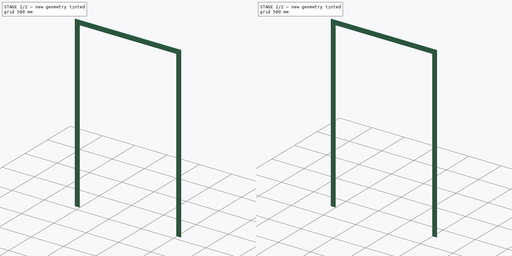
[diagram: build sequence overview — one tinted view per stage of 2, left to right]
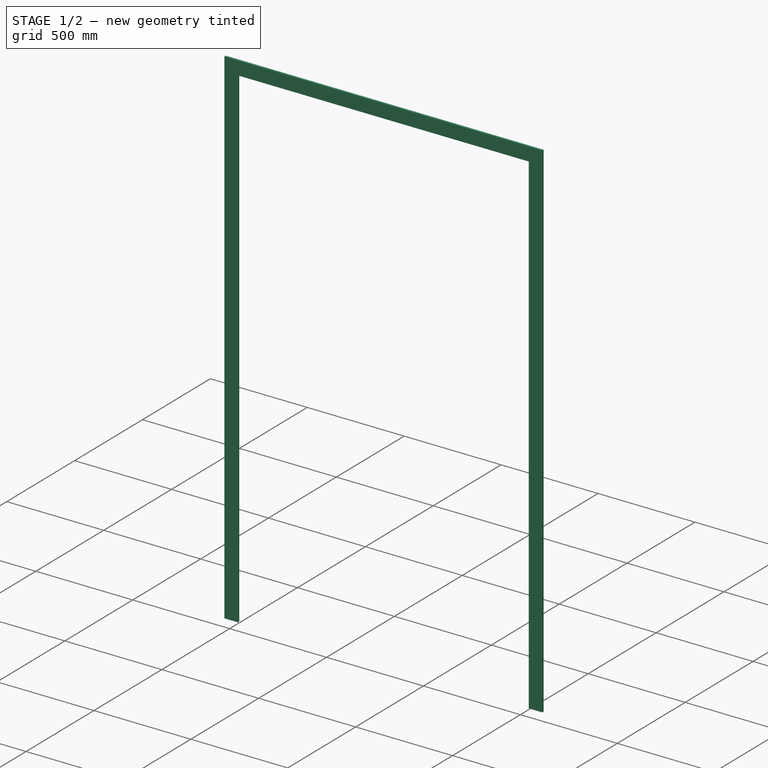
[diagram: stage 1 of 2 — iso view after this stage's code; geometry added in this stage tinted green]
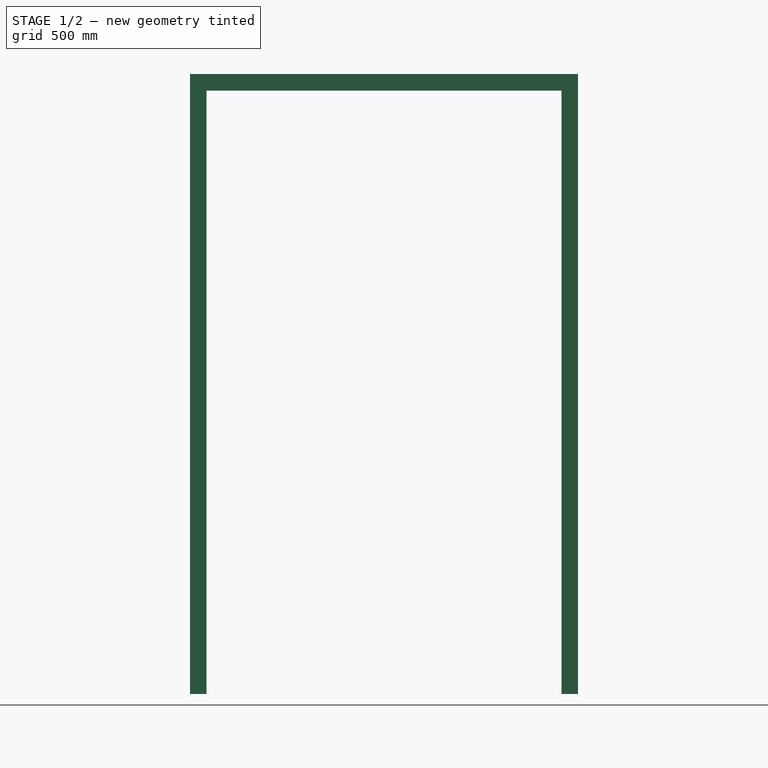
[diagram: stage 1 of 2 — front view after this stage's code; geometry added in this stage tinted green]
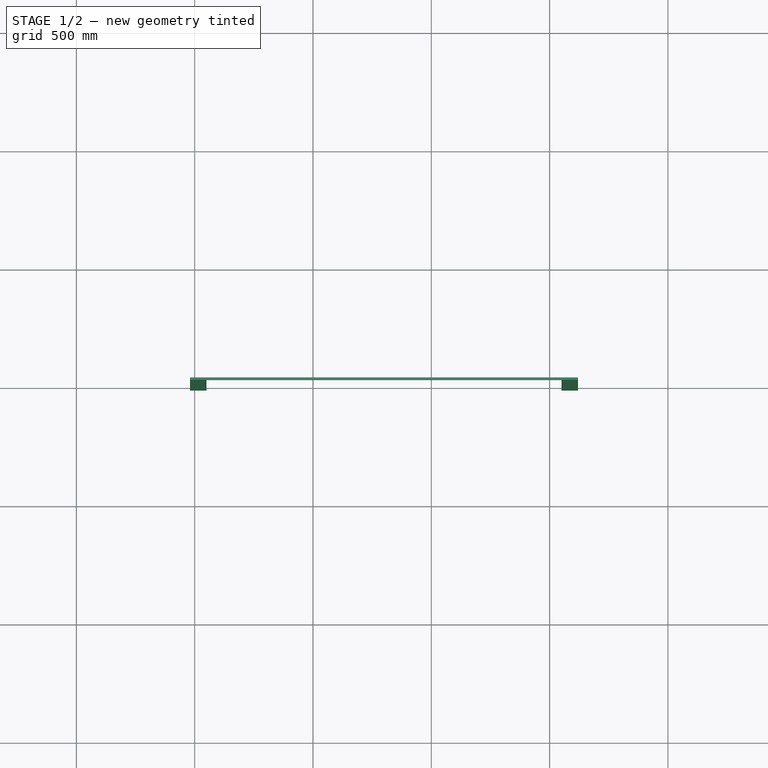
[diagram: stage 1 of 2 — top view after this stage's code; geometry added in this stage tinted green]
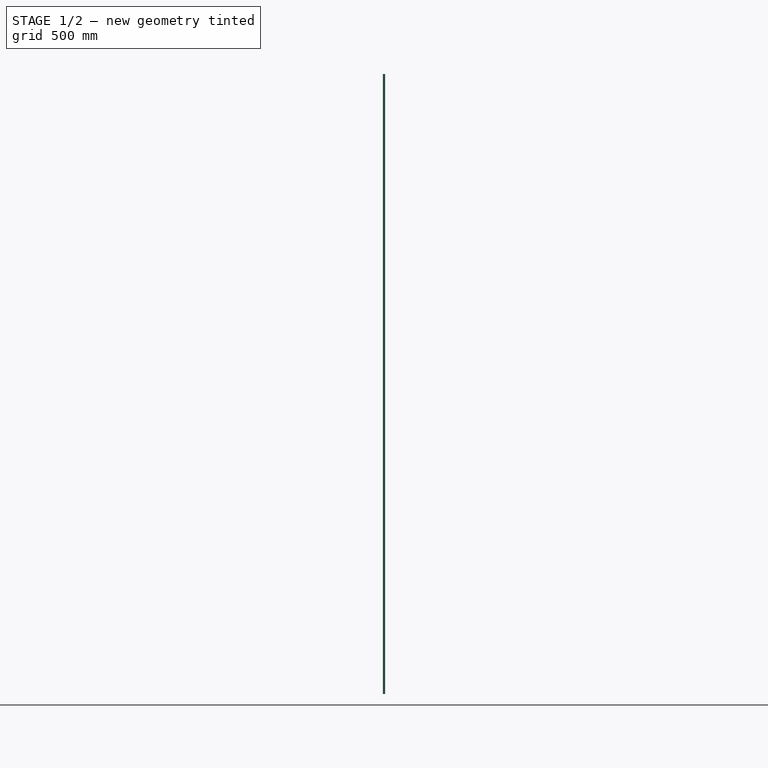
[diagram: stage 1 of 2 — right view after this stage's code; geometry added in this stage tinted green]
FCSTD DOCUMENT  (FreeCAD 0.16R6704 (Git))
Label: Double doors with transom and trims
License: CreativeCommons Attribution
LicenseURL: http://creativecommons.org/licenses/by/4.0/
objects: Sketcher::SketchObject×2, Part::FeaturePython×1, Part::Extrusion×1, PartDesign::Fillet×1, Part::Mirroring×1, App::DocumentObjectGroup×1
note: 6 computed .brp shape members not serialized (recipe doc carries the construction recipe); baked Part::Feature solids carry a one-line shape summary decoded from their .brp

FEATURE [Sketcher::SketchObject] Sketch143
  Placement = pos=(0,0,0) rot=(1,0,0;1.5708rad)
  sketch-geometry (21):
    g0: LineSegment StartX=0 StartY=0 StartZ=0 EndX=1600 EndY=0 EndZ=0
    g1: LineSegment StartX=1600 StartY=0 StartZ=0 EndX=1600 EndY=2600 EndZ=0
    g2: LineSegment StartX=1600 StartY=2600 StartZ=0 EndX=0 EndY=2600 EndZ=0
    g3: LineSegment StartX=0 StartY=2600 StartZ=0 EndX=0 EndY=0 EndZ=0
    g4: LineSegment StartX=50 StartY=2550 StartZ=0 EndX=1550 EndY=2550 EndZ=0
    g5: LineSegment StartX=1550 StartY=2550 StartZ=0 EndX=1550 EndY=0 EndZ=0
    g6: LineSegment StartX=1550 StartY=0 StartZ=0 EndX=50 EndY=0 EndZ=0
    g7: LineSegment StartX=50 StartY=0 StartZ=0 EndX=50 EndY=2550 EndZ=0
    g8: LineSegment StartX=55 StartY=2100 StartZ=0 EndX=797.5 EndY=2100 EndZ=0
    g9: LineSegment StartX=797.5 StartY=2100 StartZ=0 EndX=797.5 EndY=5 EndZ=0
    g10: LineSegment StartX=797.5 StartY=5 StartZ=0 EndX=55 EndY=5 EndZ=0
    g11: LineSegment StartX=55 StartY=5 StartZ=0 EndX=55 EndY=2100 EndZ=0
    g12: LineSegment StartX=802.5 StartY=2100 StartZ=0 EndX=1549 EndY=2100 EndZ=0
    g13: LineSegment StartX=1549 StartY=2100 StartZ=0 EndX=1549 EndY=5 EndZ=0
    g14: LineSegment StartX=1549 StartY=5 StartZ=0 EndX=802.5 EndY=5 EndZ=0
    g15: LineSegment StartX=802.5 StartY=5 StartZ=0 EndX=802.5 EndY=2100 EndZ=0
    g16: LineSegment [constr] StartX=800 StartY=2267.71 StartZ=0 EndX=800 EndY=-195.781 EndZ=0
    g17: LineSegment StartX=51 StartY=2549 StartZ=0 EndX=1549 EndY=2549 EndZ=0
    g18: LineSegment StartX=1549 StartY=2549 StartZ=0 EndX=1549 EndY=2101 EndZ=0
    g19: LineSegment StartX=1549 StartY=2101 StartZ=0 EndX=51 EndY=2101 EndZ=0
    g20: LineSegment StartX=51 StartY=2101 StartZ=0 EndX=51 EndY=2549 EndZ=0
  constraints (60):
    c: Coincident(g0,g1)
    c: Coincident(g1,g2)
    c: Coincident(g2,g3)
    c: Coincident(g3,g0)
    c: Horizontal(g0)
    c: Horizontal(g2)
    c: Vertical(g1)
    c: Vertical(g3)
    c: DistanceX(g2,g1) = 1600  'Largura das portas'
    c: Coincident(g4,g5)
    c: Coincident(g5,g6)
    c: Coincident(g6,g7)
    c: Coincident(g7,g4)
    c: Horizontal(g4)
    c: Horizontal(g6)
    c: Vertical(g5)
    c: Vertical(g7)
    c: PointOnObject(g5,g0)
    c: DistanceX(g2,g4) = 50  'Largura do batente 1'
    c: DistanceY(g4,g2) = 50  'Altura batente'
    c: DistanceX(g4,g1) = 50  'Largura do batente 2'
    c: Coincident(g8,g9)
    c: Coincident(g9,g10)
    c: Coincident(g10,g11)
    c: Coincident(g11,g8)
    c: Horizontal(g8)
    c: Horizontal(g10)
    c: Vertical(g9)
    c: Vertical(g11)
    c: Coincident(g13,g14)
    c: Coincident(g14,g15)
    c: Coincident(g15,g12)
    c: Horizontal(g12)
    c: Horizontal(g14)
    c: Vertical(g13)
    c: Vertical(g15)
    c: DistanceX(g4,g8) = 5
    c: Vertical(g16)
    c: DistanceX(g12,g8) = -5
    c: Symmetric(g8,g12,g16)
    c: DistanceY(g10,g6) = -5
    c: DistanceY(g13,g5) = -5
    c: Coincident(g0,g-1)
    c: DistanceY(g-1,g8) = 2100  'Altura das portas'
    c: Coincident(g17,g18)  'Constraint47'
    c: Coincident(g19,g20)  'Constraint46'
    c: Coincident(g20,g17)
    c: Horizontal(g17)
    c: Horizontal(g19)
    c: Vertical(g18)
    c: Vertical(g20)
    c: DistanceX(g4,g17) = 1
    c: DistanceY(g17,g4) = 1
    c: DistanceX(g17,g4) = 1
    c: Symmetric(g-1,g0,g16)
    c: DistanceX(g12,g18) = 0
    c: Coincident(g12,g13)
    c: DistanceY(g12,g18) = 1
    c: Coincident(g19,g18)
    c: DistanceY(g-1,g2) = 2600  'Altura do vão'
FEATURE [Part::FeaturePython] Window099  label="Double doors with transom"  # WARN: FeaturePython — macro-defined, semantics opaque (R4)
  Base = -> Sketch143
  Height = 0
  HoleDepth = 0
  MoveWithHost = true
  Normal = (0,1,0)
  Preset = 0
  Role = 0
  Width = 0
  WindowParts = BATENTE | Frame | Wire0,Wire1,Wire2,Wire3 | 190 | 0.0 | PORTA 1 | Frame | Wire2 | 40.0 | 150.0 | PORTA 2 | Frame | Wire3 | 40.0 | 150.0 | BANDEIRA | Frame | Wire4 | 40.0 | 150.0
FEATURE [Sketcher::SketchObject] Sketch198  label="Esboço guarnições 009"
  ExternalGeometry = -> [Window099]
  Placement = pos=(0,0,0) rot=(1,0,0;1.5708rad)
  Support = -> Window099 [Face2]
  sketch-geometry (11):
    g0: LineSegment StartX=50 StartY=0 StartZ=0 EndX=-20 EndY=0 EndZ=0
    g1: LineSegment StartX=-20 StartY=0 StartZ=0 EndX=-20 EndY=2620 EndZ=0
    g2: LineSegment StartX=-20 StartY=2620 StartZ=0 EndX=1620 EndY=2620 EndZ=0
    g3: LineSegment StartX=1620 StartY=2620 StartZ=0 EndX=1620 EndY=0 EndZ=0
    g4: LineSegment StartX=1620 StartY=0 StartZ=0 EndX=1550 EndY=0 EndZ=0
    g5: LineSegment StartX=1550 StartY=0 StartZ=0 EndX=1550 EndY=2550 EndZ=0
    g6: LineSegment StartX=1550 StartY=2550 StartZ=0 EndX=50 EndY=2550 EndZ=0
    g7: LineSegment StartX=50 StartY=2550 StartZ=0 EndX=50 EndY=0 EndZ=0
    g8: LineSegment [constr] StartX=203.497 StartY=2620 StartZ=0 EndX=203.497 EndY=2550 EndZ=0
    g9: LineSegment [constr] StartX=-20 StartY=2370.56 StartZ=0 EndX=50 EndY=2370.56 EndZ=0
    g10: LineSegment [constr] StartX=1550 StartY=2310.8 StartZ=0 EndX=1620 EndY=2310.8 EndZ=0
  constraints (29):
    c: Horizontal(g0)
    c: Coincident(g0,g1)
    c: Vertical(g1)
    c: Coincident(g1,g2)
    c: Horizontal(g2)
    c: Coincident(g2,g3)
    c: Vertical(g3)
    c: Coincident(g3,g4)
    c: Coincident(g4,g-5)
    c: Horizontal(g4)
    c: Coincident(g4,g5)
    c: Coincident(g5,g-5)
    c: Coincident(g5,g6)
    c: Coincident(g6,g-4)
    c: Coincident(g6,g7)
    c: Coincident(g7,g-3)
    c: DistanceX(g1,g6) = 70  'Largura guarnição'
    c: PointOnObject(g8,g2)
    c: PointOnObject(g8,g-4)
    c: PointOnObject(g9,g1)
    c: PointOnObject(g9,g-3)
    c: PointOnObject(g10,g-5)
    c: PointOnObject(g10,g3)
    c: Angle(g8) = -1.5708
    c: Angle(g9) = 0
    c: Angle(g10) = 0
    c: Equal(g10,g8)
    c: Equal(g8,g9)
    c: Coincident(g7,g0)
FEATURE [Part::Extrusion] Extrude_Sketch198  label="Trim "
  Base = -> Sketch198
  Dir = (0,-10,0)
  Solid = true
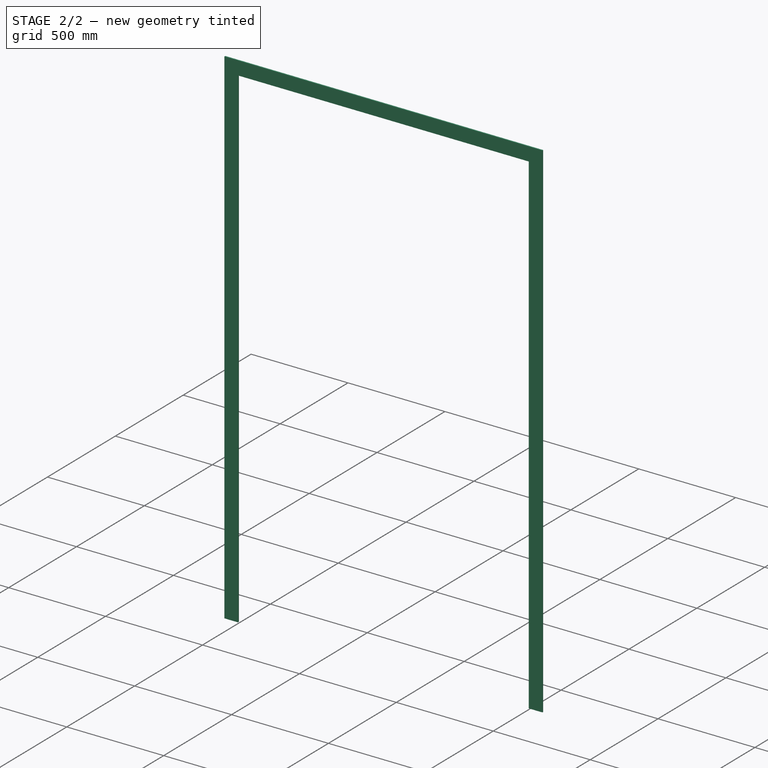
[diagram: stage 2 of 2 — iso view after this stage's code; geometry added in this stage tinted green]
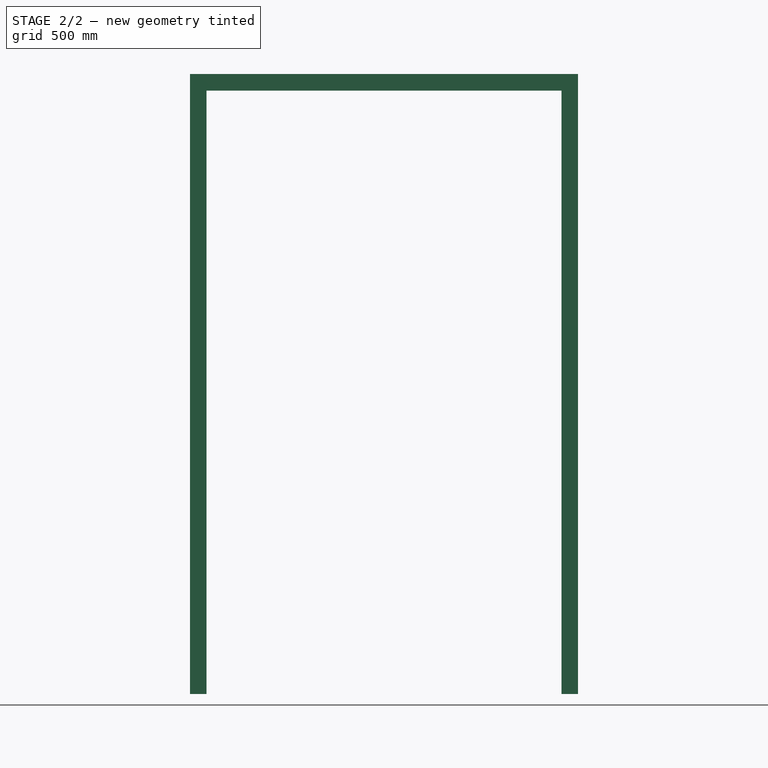
[diagram: stage 2 of 2 — front view after this stage's code; geometry added in this stage tinted green]
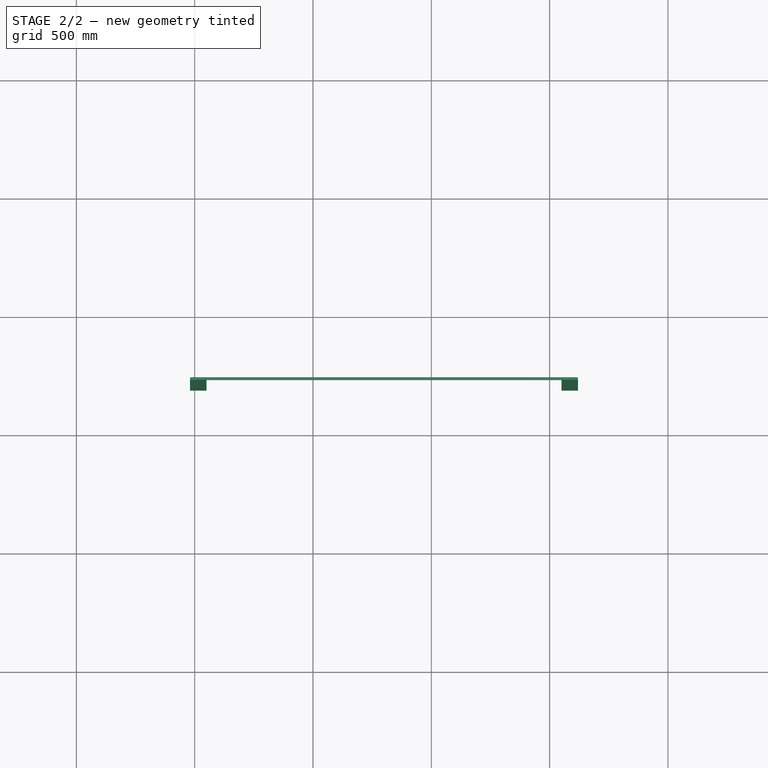
[diagram: stage 2 of 2 — top view after this stage's code; geometry added in this stage tinted green]
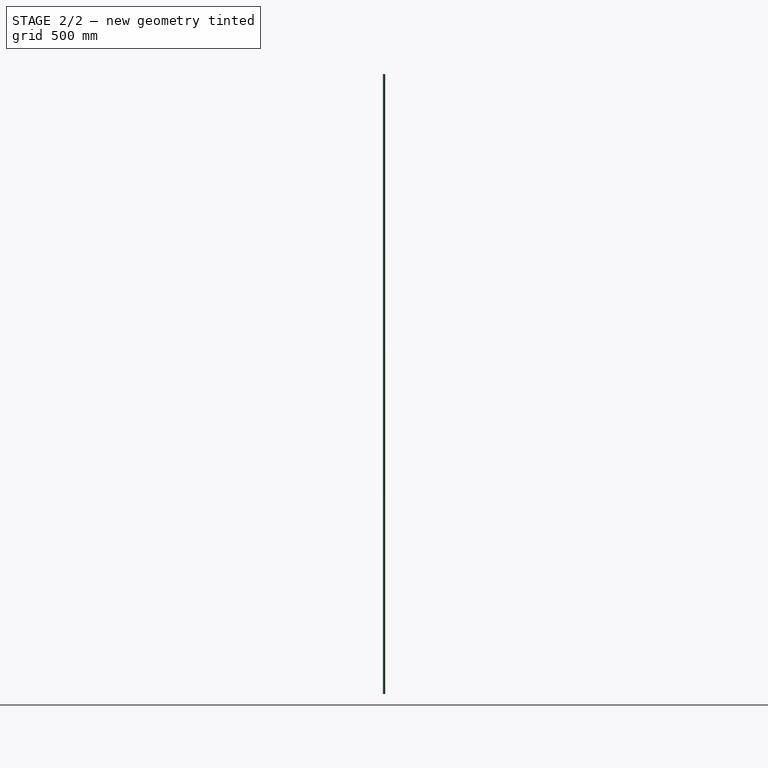
[diagram: stage 2 of 2 — right view after this stage's code; geometry added in this stage tinted green]
FEATURE [PartDesign::Fillet] Fillet006  label="Final trim"
  Base = -> Extrude_Sketch198 [Edge13,Edge19,Edge22,Edge10,Edge24,Edge7]
  Radius = 5
FEATURE [Part::Mirroring] Part__Mirroring006  label="Final trim (Mirror #7)"
  Base = (0,0,0)
  Normal = (0,1,0)
  Placement = pos=(0,190,0) rot=(0,0,1;0rad)
  Source = -> Fillet006
FEATURE [App::DocumentObjectGroup] Grupo120  label="Double doors with transom and trims"
  Group = -> [Window099,Extrude_Sketch198,Part__Mirroring006]
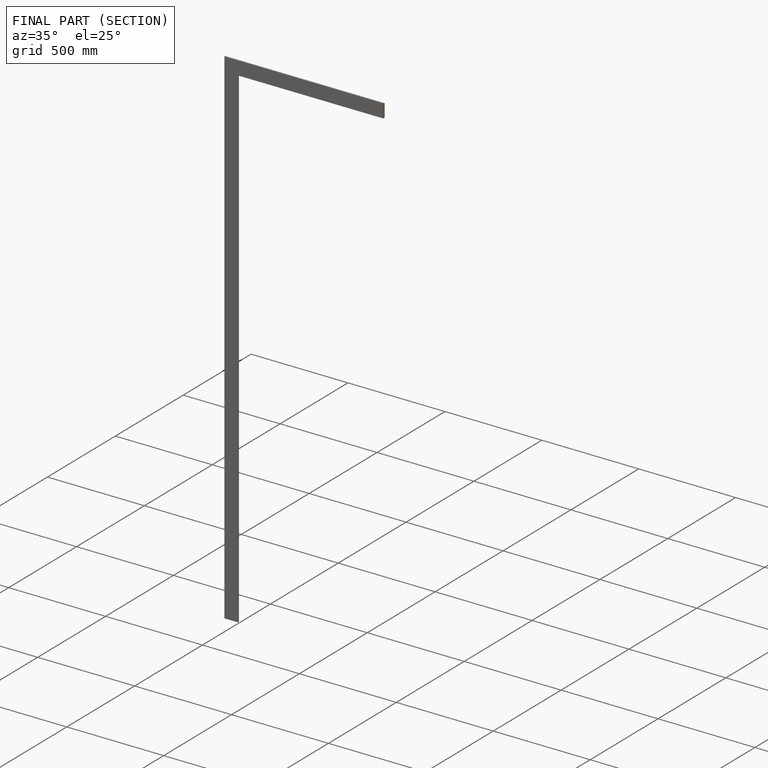
[diagram: finished part — half-section view (interior)]
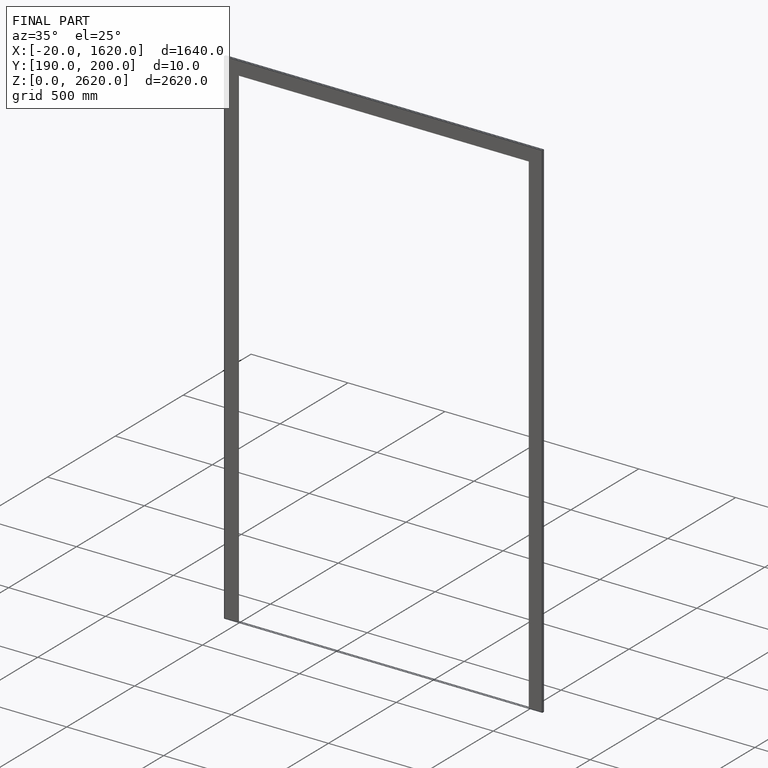
[diagram: finished part — iso view with bounding-box wireframe]
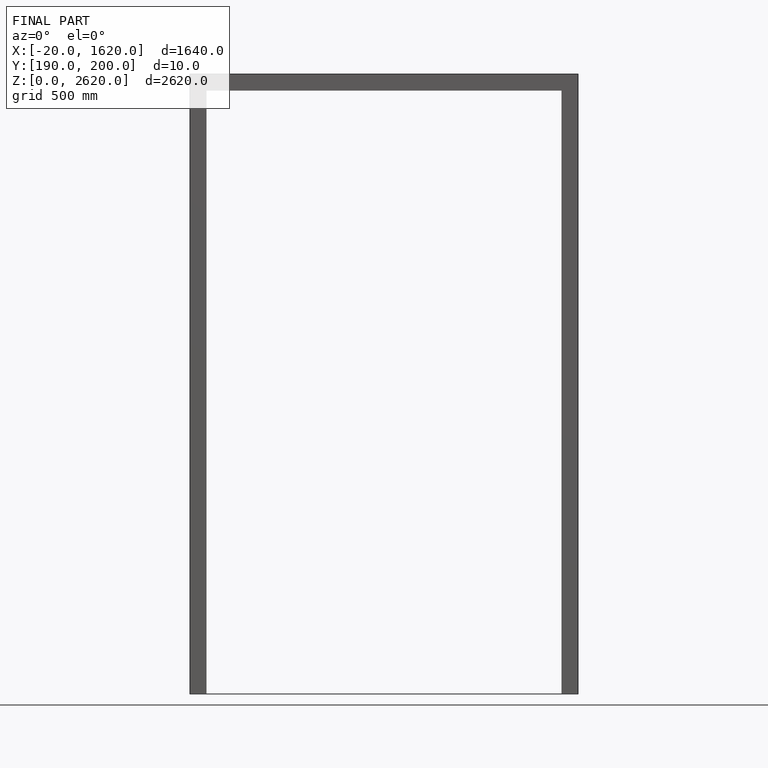
[diagram: finished part — front view with bounding-box wireframe]
